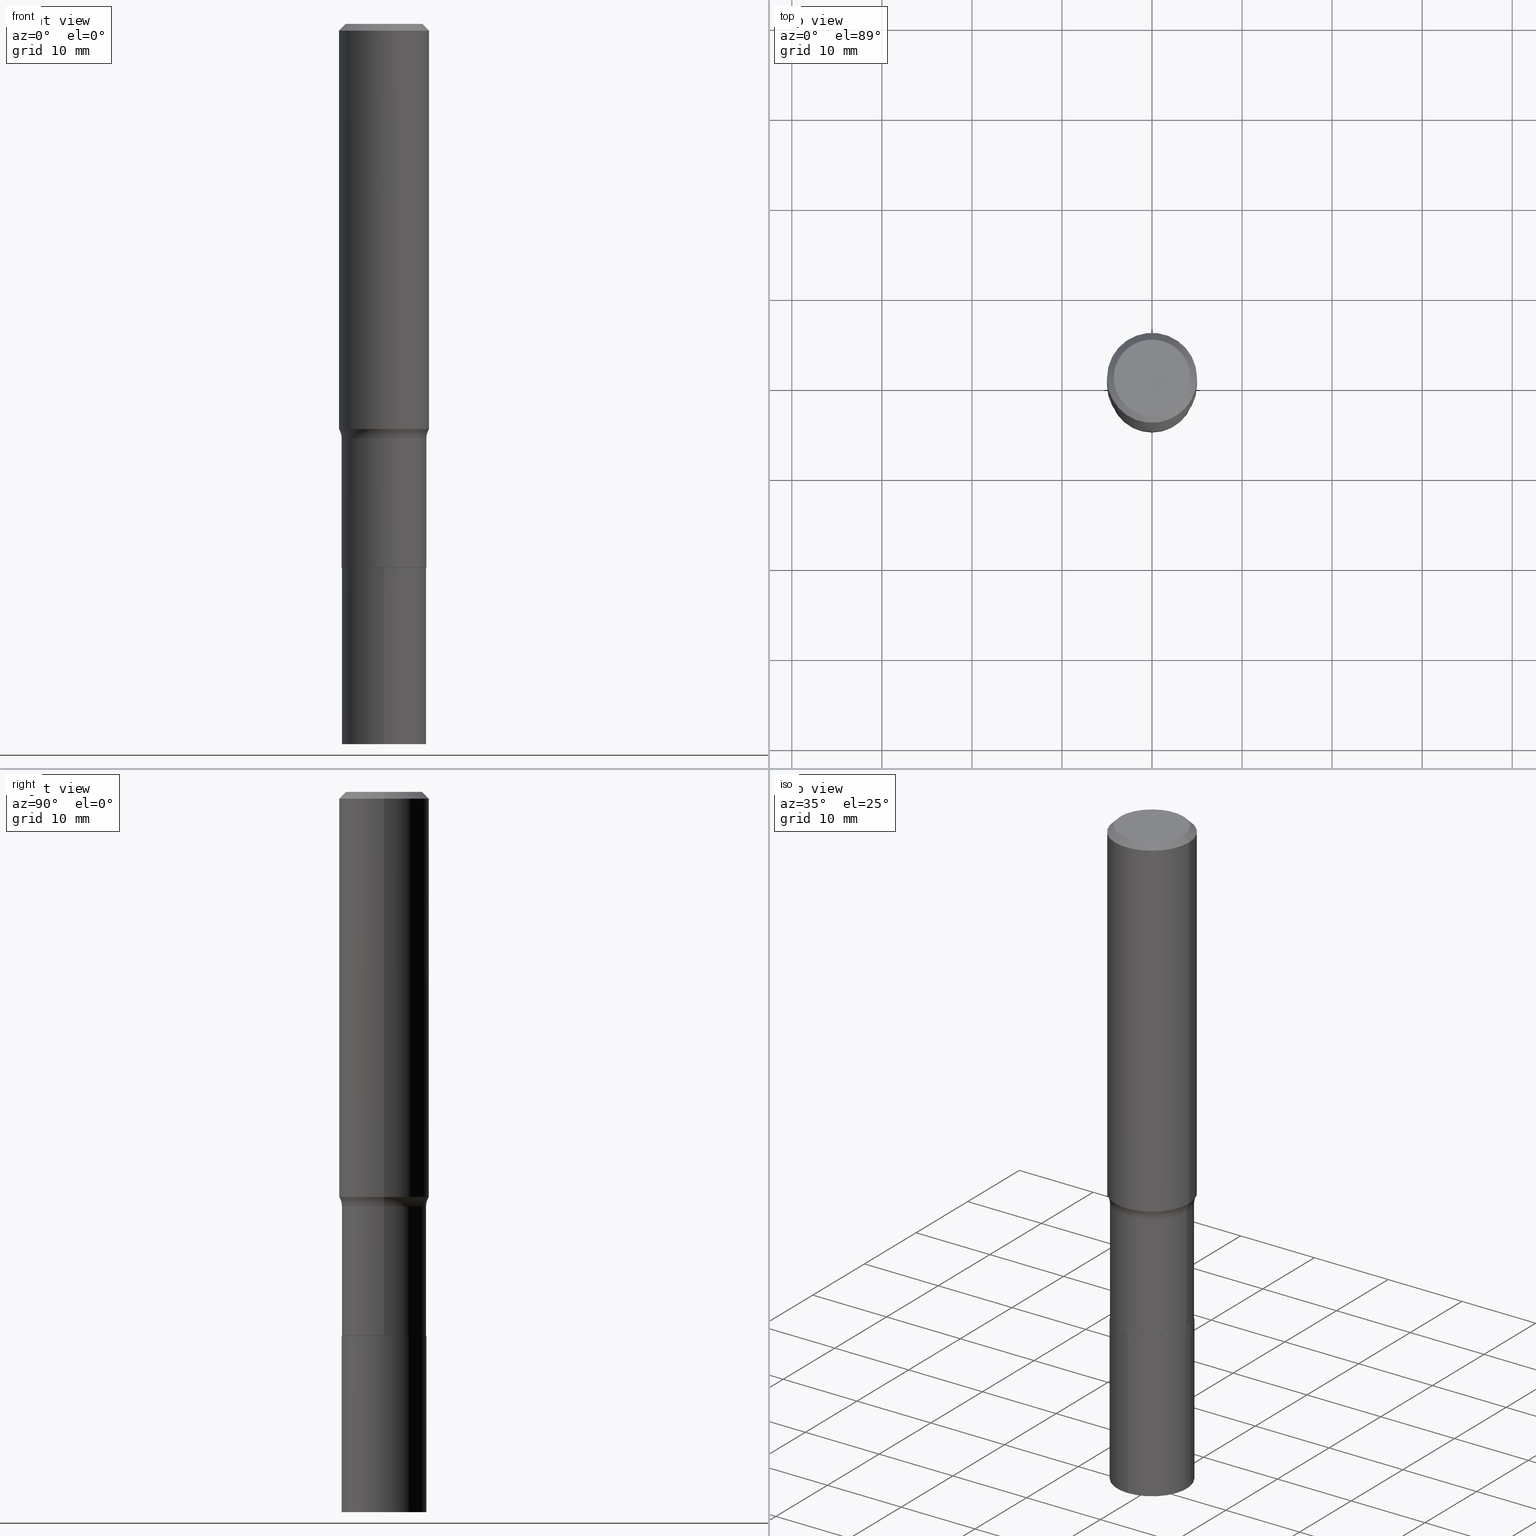
[diagram: canonical four-view strip — front | top / right | iso, engineering-drawing reading convention]
A machine part, canonical four-view strip (front | top / right | iso — engineering-drawing reading convention). The complete STEP part file that produces these views, byte-faithful:
ISO-10303-21;
HEADER;
FILE_DESCRIPTION (( 'STEP AP203' ),
    '1' );
FILE_NAME ('67141.STEP',
    '2024-04-19T16:00:24',
    ( '' ),
    ( '' ),
    'SwSTEP 2.0',
    'SolidWorks 2023',
    '' );
FILE_SCHEMA (( 'CONFIG_CONTROL_DESIGN' ));
ENDSEC;

DATA;
#1 = CARTESIAN_POINT ( 'NONE',  ( 7.702667850016740557E-29, -1.099616916613917186E-14, -3.149600000000000843 ) ) ;
#2 = DIRECTION ( 'NONE',  ( -2.445468806185136877E-29, 3.491481338843145188E-15, 1.000000000000000000 ) ) ;
#3 = ADVANCED_FACE ( 'NONE', ( #32 ), #459, .F. ) ;
#4 = PERSON_AND_ORGANIZATION ( #5, #237 ) ;
#5 = PERSON ( 'UNSPECIFIED', 'UNSPECIFIED', 'UNSPECIFIED', ('UNSPECIFIED'), ('UNSPECIFIED'), ('UNSPECIFIED') ) ;
#6 = EDGE_CURVE ( 'NONE', #347, #252, #101, .T. ) ;
#7 = LENGTH_MEASURE_WITH_UNIT ( LENGTH_MEASURE( 0.02539999999999999897 ), #291 );
#8 = AXIS2_PLACEMENT_3D ( 'NONE', #1, #463, #434 ) ;
#9 =( GEOMETRIC_REPRESENTATION_CONTEXT ( 3 ) GLOBAL_UNCERTAINTY_ASSIGNED_CONTEXT ( ( #244 ) ) GLOBAL_UNIT_ASSIGNED_CONTEXT ( ( #219, #262, #22 ) ) REPRESENTATION_CONTEXT ( 'NONE', 'WORKASPACE' ) );
#10 = DIRECTION ( 'NONE',  ( 2.445468806185136597E-29, -3.491481338843145583E-15, -1.000000000000000000 ) ) ;
#11 = VERTEX_POINT ( 'NONE', #166 ) ;
#12 = CARTESIAN_POINT ( 'NONE',  ( 5.814346633585781088E-29, -8.301346031233465092E-15, -2.377600000000000158 ) ) ;
#13 = EDGE_CURVE ( 'NONE', #252, #347, #451, .T. ) ;
#14 = ORIENTED_EDGE ( 'NONE', *, *, #19, .T. ) ;
#15 = DIRECTION ( 'NONE',  ( -2.445468806185136597E-29, 3.491481338843145583E-15, 1.000000000000000000 ) ) ;
#16 = ORIENTED_EDGE ( 'NONE', *, *, #6, .T. ) ;
#17 = DIRECTION ( 'NONE',  ( -2.438088387897960049E-29, 3.491481338843145188E-15, 1.000000000000000000 ) ) ;
#18 = ORIENTED_EDGE ( 'NONE', *, *, #117, .F. ) ;
#19 = EDGE_CURVE ( 'NONE', #11, #118, #278, .T. ) ;
#20 = VERTEX_POINT ( 'NONE', #396 ) ;
#21 = PRODUCT_RELATED_PRODUCT_CATEGORY ( 'detail', '', ( #136 ) ) ;
#22 =( NAMED_UNIT ( * ) SI_UNIT ( $, .STERADIAN. ) SOLID_ANGLE_UNIT ( ) );
#23 = DIRECTION ( 'NONE',  ( -1.000000000000000000, 7.105427357601001859E-15, 0.000000000000000000 ) ) ;
#24 = CARTESIAN_POINT ( 'NONE',  ( 4.433879492494271668E-29, -6.330404815456507888E-15, -1.813100000000000156 ) ) ;
#25 = COORDINATED_UNIVERSAL_TIME_OFFSET ( 5, 0, .BEHIND. ) ;
#26 = VECTOR ( 'NONE', #66, 39.37007874015748143 ) ;
#27 = EDGE_CURVE ( 'NONE', #140, #126, #412, .T. ) ;
#28 = CIRCLE ( 'NONE', #102, 0.08000000000000002942 ) ;
#29 = DIRECTION ( 'NONE',  ( 2.438088387897960049E-29, -3.491481338843145188E-15, -1.000000000000000000 ) ) ;
#30 = DATE_AND_TIME ( #354, #247 ) ;
#31 = EDGE_CURVE ( 'NONE', #275, #225, #168, .T. ) ;
#32 = FACE_OUTER_BOUND ( 'NONE', #50, .T. ) ;
#33 = APPROVAL_DATE_TIME ( #314, #359 ) ;
#34 = CC_DESIGN_DATE_AND_TIME_ASSIGNMENT ( #287, #328, ( #401 ) ) ;
#35 = DIRECTION ( 'NONE',  ( -2.445468806185136597E-29, 3.491481338843145583E-15, 1.000000000000000000 ) ) ;
#36 = LOCAL_TIME ( 12, 0, 24.00000000000000000, #428 ) ;
#37 = CC_DESIGN_APPROVAL ( #359, ( #112 ) ) ;
#38 = SHAPE_DEFINITION_REPRESENTATION ( #153, #149 ) ;
#39 = AXIS2_PLACEMENT_3D ( 'NONE', #42, #342, #339 ) ;
#40 = DIRECTION ( 'NONE',  ( 1.000000000000000000, -6.982962677686265922E-15, 0.000000000000000000 ) ) ;
#41 = ORIENTED_EDGE ( 'NONE', *, *, #366, .F. ) ;
#42 = CARTESIAN_POINT ( 'NONE',  ( 5.813123899182689408E-29, -8.299600290564042799E-15, -2.377100000000000435 ) ) ;
#43 = CIRCLE ( 'NONE', #436, 0.1845499999999999363 ) ;
#44 = ORIENTED_EDGE ( 'NONE', *, *, #31, .T. ) ;
#45 = CARTESIAN_POINT ( 'NONE',  ( 0.1968500000000000250, -1.453583746094017706E-15, -0.02952750000000019595 ) ) ;
#46 = ORIENTED_EDGE ( 'NONE', *, *, #159, .T. ) ;
#47 = LINE ( 'NONE', #193, #268 ) ;
#48 = CARTESIAN_POINT ( 'NONE',  ( 5.814346633585781088E-29, -8.301346031233465092E-15, -2.377600000000000158 ) ) ;
#49 = ADVANCED_FACE ( 'NONE', ( #176 ), #460, .T. ) ;
#50 = EDGE_LOOP ( 'NONE', ( #341, #16 ) ) ;
#51 = FACE_OUTER_BOUND ( 'NONE', #456, .T. ) ;
#52 = CONICAL_SURFACE ( 'NONE', #325, 0.1968500000000000250, 0.7853981633974453924 ) ;
#53 = CIRCLE ( 'NONE', #277, 0.1968500000000002470 ) ;
#54 = PERSON_AND_ORGANIZATION ( #5, #237 ) ;
#55 = ORIENTED_EDGE ( 'NONE', *, *, #19, .F. ) ;
#56 = DIRECTION ( 'NONE',  ( -2.445468806185136597E-29, 3.491481338843145583E-15, 1.000000000000000000 ) ) ;
#57 = EDGE_CURVE ( 'NONE', #123, #404, #212, .T. ) ;
#58 = CYLINDRICAL_SURFACE ( 'NONE', #143, 0.1850499999999999923 ) ;
#59 = CARTESIAN_POINT ( 'NONE',  ( 1.314859332524142253E-15, 0.1850499999999916934, -2.377600000000001046 ) ) ;
#60 = PERSON_AND_ORGANIZATION_ROLE ( 'creator' ) ;
#61 = AXIS2_PLACEMENT_3D ( 'NONE', #300, #158, #86 ) ;
#62 = AXIS2_PLACEMENT_3D ( 'NONE', #405, #222, #116 ) ;
#63 = ORIENTED_EDGE ( 'NONE', *, *, #31, .F. ) ;
#64 = DIRECTION ( 'NONE',  ( 1.000000000000000000, 0.000000000000000000, 0.000000000000000000 ) ) ;
#65 = ADVANCED_FACE ( 'NONE', ( #382 ), #271, .T. ) ;
#66 = DIRECTION ( 'NONE',  ( -2.445468806185136877E-29, 3.491481338843145188E-15, 1.000000000000000000 ) ) ;
#67 = ORIENTED_EDGE ( 'NONE', *, *, #445, .F. ) ;
#68 = DESIGN_CONTEXT ( 'detailed design', #214, 'design' ) ;
#69 = CALENDAR_DATE ( 2024, 19, 4 ) ;
#70 = DIRECTION ( 'NONE',  ( -2.446011938382070337E-29, 3.490703542623971716E-15, 1.000000000000000000 ) ) ;
#71 = AXIS2_PLACEMENT_3D ( 'NONE', #232, #265, #40 ) ;
#72 = VERTEX_POINT ( 'NONE', #415 ) ;
#73 = AXIS2_PLACEMENT_3D ( 'NONE', #165, #138, #200 ) ;
#74 = CIRCLE ( 'NONE', #311, 0.1850499999999999923 ) ;
#75 = DIRECTION ( 'NONE',  ( 1.000000000000000000, -6.982962677686265922E-15, 4.876176775795935793E-29 ) ) ;
#76 = EDGE_CURVE ( 'NONE', #72, #225, #203, .T. ) ;
#77 = ORIENTED_EDGE ( 'NONE', *, *, #356, .F. ) ;
#78 = DIRECTION ( 'NONE',  ( 1.000000000000000000, -6.982962677686270655E-15, 0.000000000000000000 ) ) ;
#79 = AXIS2_PLACEMENT_3D ( 'NONE', #206, #360, #107 ) ;
#80 = ORIENTED_EDGE ( 'NONE', *, *, #299, .T. ) ;
#81 = APPLICATION_CONTEXT ( 'configuration controlled 3d designs of mechanical parts and assemblies' ) ;
#82 = DIRECTION ( 'NONE',  ( 1.000000000000000000, -6.982962677686266711E-15, 4.883557194083112901E-29 ) ) ;
#83 = CARTESIAN_POINT ( 'NONE',  ( 4.433879492494271668E-29, -6.330404815456507888E-15, -1.813100000000000156 ) ) ;
#84 = CARTESIAN_POINT ( 'NONE',  ( 5.814346633585781088E-29, -8.301346031233465092E-15, -2.377600000000000158 ) ) ;
#85 = ORIENTED_EDGE ( 'NONE', *, *, #274, .T. ) ;
#86 = DIRECTION ( 'NONE',  ( -6.982962677686265133E-15, -1.000000000000000000, 2.952551195530141356E-15 ) ) ;
#87 = EDGE_CURVE ( 'NONE', #197, #154, #43, .T. ) ;
#88 = ORIENTED_EDGE ( 'NONE', *, *, #327, .F. ) ;
#89 = CARTESIAN_POINT ( 'NONE',  ( 0.1845499999999999363, -9.590051793400465569E-15, -2.377600000000000158 ) ) ;
#90 = ORIENTED_EDGE ( 'NONE', *, *, #186, .T. ) ;
#91 = FACE_OUTER_BOUND ( 'NONE', #413, .T. ) ;
#92 = PERSON_AND_ORGANIZATION ( #5, #237 ) ;
#93 = DIRECTION ( 'NONE',  ( -2.445468806185136597E-29, 3.491481338843145583E-15, 1.000000000000000000 ) ) ;
#94 = ORIENTED_EDGE ( 'NONE', *, *, #445, .T. ) ;
#95 = EDGE_CURVE ( 'NONE', #72, #20, #308, .T. ) ;
#96 = MANIFOLD_SOLID_BREP ( 'Body-Move/Copy2[2]', #363 ) ;
#97 = CARTESIAN_POINT ( 'NONE',  ( 5.814346633585781088E-29, -8.301346031233465092E-15, -2.377600000000000158 ) ) ;
#98 = CC_DESIGN_PERSON_AND_ORGANIZATION_ASSIGNMENT ( #92, #60, ( #112 ) ) ;
#99 = DIRECTION ( 'NONE',  ( 0.000000000000000000, 0.000000000000000000, 1.000000000000000000 ) ) ;
#100 = CYLINDRICAL_SURFACE ( 'NONE', #310, 0.1968500000000001082 ) ;
#101 = CIRCLE ( 'NONE', #108, 0.1673224999999999851 ) ;
#102 = AXIS2_PLACEMENT_3D ( 'NONE', #427, #245, #389 ) ;
#103 = EDGE_LOOP ( 'NONE', ( #431, #157 ) ) ;
#104 = CARTESIAN_POINT ( 'NONE',  ( -1.001697619218021790E-46, 1.430158722866389718E-32, 4.096137381448108366E-18 ) ) ;
#105 = SECURITY_CLASSIFICATION_LEVEL ( 'unclassified' ) ;
#106 = LINE ( 'NONE', #399, #466 ) ;
#107 = DIRECTION ( 'NONE',  ( 1.000000000000000000, -6.982962677686270655E-15, 0.000000000000000000 ) ) ;
#108 = AXIS2_PLACEMENT_3D ( 'NONE', #171, #56, #352 ) ;
#109 = TOROIDAL_SURFACE ( 'NONE', #178, 0.2650499999999999523, 0.08000000000000001554 ) ;
#110 = PERSON_AND_ORGANIZATION_ROLE ( 'design_supplier' ) ;
#111 = DATE_AND_TIME ( #439, #364 ) ;
#112 = PRODUCT_DEFINITION ( 'UNKNOWN', '', #218, #68 ) ;
#113 = AXIS2_PLACEMENT_3D ( 'NONE', #173, #29, #167 ) ;
#114 = VECTOR ( 'NONE', #119, 39.37007874015748143 ) ;
#115 = ORIENTED_EDGE ( 'NONE', *, *, #146, .T. ) ;
#116 = DIRECTION ( 'NONE',  ( 1.000000000000000000, -6.982962677686266711E-15, 4.876176775795935793E-29 ) ) ;
#117 = EDGE_CURVE ( 'NONE', #216, #275, #435, .T. ) ;
#118 = VERTEX_POINT ( 'NONE', #208 ) ;
#119 = DIRECTION ( 'NONE',  ( -2.445468806185136877E-29, 3.491481338843145188E-15, 1.000000000000000000 ) ) ;
#120 = ADVANCED_FACE ( 'NONE', ( #397 ), #134, .T. ) ;
#121 = ORIENTED_EDGE ( 'NONE', *, *, #186, .F. ) ;
#122 = PLANE ( 'NONE',  #331 ) ;
#123 = VERTEX_POINT ( 'NONE', #59 ) ;
#124 = CONICAL_SURFACE ( 'NONE', #422, 0.1845499999999999363, 0.7853981633975849475 ) ;
#125 = DIRECTION ( 'NONE',  ( -1.000000000000000000, 6.982962677686265922E-15, 0.000000000000000000 ) ) ;
#126 = VERTEX_POINT ( 'NONE', #280 ) ;
#127 = DIRECTION ( 'NONE',  ( -2.445468806185136597E-29, 3.491481338843145583E-15, 1.000000000000000000 ) ) ;
#128 = ORIENTED_EDGE ( 'NONE', *, *, #57, .T. ) ;
#129 = DIRECTION ( 'NONE',  ( -2.445468806185136597E-29, 3.491481338843145583E-15, 1.000000000000000000 ) ) ;
#130 = CLOSED_SHELL ( 'NONE', ( #248, #306, #448, #425 ) ) ;
#131 = DIRECTION ( 'NONE',  ( 1.000000000000000000, -6.982962677686265922E-15, 0.000000000000000000 ) ) ;
#132 = AXIS2_PLACEMENT_3D ( 'NONE', #185, #296, #270 ) ;
#133 = APPROVAL_STATUS ( 'not_yet_approved' ) ;
#134 = CYLINDRICAL_SURFACE ( 'NONE', #150, 0.1850499999999999368 ) ;
#135 = DIRECTION ( 'NONE',  ( -0.7071067811865454633, 2.468850131082235367E-15, -0.7071067811865495711 ) ) ;
#136 = PRODUCT ( '67141', '67141', '', ( #233 ) ) ;
#137 = APPROVAL_STATUS ( 'not_yet_approved' ) ;
#138 = DIRECTION ( 'NONE',  ( -2.445468806185136597E-29, 3.491481338843145583E-15, 1.000000000000000000 ) ) ;
#139 = LINE ( 'NONE', #174, #235 ) ;
#140 = VERTEX_POINT ( 'NONE', #242 ) ;
#141 = PERSON_AND_ORGANIZATION_ROLE ( 'creator' ) ;
#142 = AXIS2_PLACEMENT_3D ( 'NONE', #301, #386, #343 ) ;
#143 = AXIS2_PLACEMENT_3D ( 'NONE', #241, #385, #313 ) ;
#144 = EDGE_LOOP ( 'NONE', ( #163, #80, #63, #18 ) ) ;
#145 = APPROVAL_STATUS ( 'not_yet_approved' ) ;
#146 = EDGE_CURVE ( 'NONE', #11, #72, #289, .T. ) ;
#147 = ADVANCED_FACE ( 'NONE', ( #432 ), #194, .T. ) ;
#148 = DIRECTION ( 'NONE',  ( 0.7071067811865454633, -7.319954787623248157E-15, -0.7071067811865495711 ) ) ;
#149 = ADVANCED_BREP_SHAPE_REPRESENTATION ( '67141', ( #260, #96, #204 ), #9 ) ;
#150 = AXIS2_PLACEMENT_3D ( 'NONE', #156, #93, #424 ) ;
#151 = ORIENTED_EDGE ( 'NONE', *, *, #458, .F. ) ;
#152 = LINE ( 'NONE', #192, #114 ) ;
#153 = PRODUCT_DEFINITION_SHAPE ( 'NONE', 'NONE',  #112 ) ;
#154 = VERTEX_POINT ( 'NONE', #391 ) ;
#155 = PLANE ( 'NONE',  #132 ) ;
#156 = CARTESIAN_POINT ( 'NONE',  ( 0.000000000000000000, 0.000000000000000000, 0.000000000000000000 ) ) ;
#157 = ORIENTED_EDGE ( 'NONE', *, *, #320, .F. ) ;
#158 = DIRECTION ( 'NONE',  ( -2.446011938382070337E-29, 3.490703542623971716E-15, 1.000000000000000000 ) ) ;
#159 = EDGE_CURVE ( 'NONE', #126, #404, #172, .T. ) ;
#160 = AXIS2_PLACEMENT_3D ( 'NONE', #24, #35, #312 ) ;
#161 = CC_DESIGN_APPROVAL ( #253, ( #401 ) ) ;
#162 = DIRECTION ( 'NONE',  ( -2.445468806185136597E-29, 3.491481338843145583E-15, 1.000000000000000000 ) ) ;
#163 = ORIENTED_EDGE ( 'NONE', *, *, #356, .T. ) ;
#164 = CARTESIAN_POINT ( 'NONE',  ( 7.220858017463209485E-31, -1.030947152326916609E-16, -0.02952750000000019595 ) ) ;
#165 = CARTESIAN_POINT ( 'NONE',  ( 0.000000000000000000, 0.000000000000000000, 0.000000000000000000 ) ) ;
#166 = CARTESIAN_POINT ( 'NONE',  ( 0.1968500000000002470, -7.558993630916840498E-15, -1.771281822134387118 ) ) ;
#167 = DIRECTION ( 'NONE',  ( -1.000000000000000000, 6.982962677686265922E-15, -4.876176775795935793E-29 ) ) ;
#168 = CIRCLE ( 'NONE', #160, 0.1850499999999999090 ) ;
#169 = CARTESIAN_POINT ( 'NONE',  ( 5.814346633585781088E-29, -8.301346031233465092E-15, -2.377600000000000158 ) ) ;
#170 = CIRCLE ( 'NONE', #437, 0.1968500000000000250 ) ;
#171 = CARTESIAN_POINT ( 'NONE',  ( -1.001697619218021790E-46, 1.430158722866389718E-32, 4.096137381448108366E-18 ) ) ;
#172 = LINE ( 'NONE', #319, #440 ) ;
#173 = CARTESIAN_POINT ( 'NONE',  ( -5.008488096090108951E-47, 7.150793614331948590E-33, 2.048068690724054183E-18 ) ) ;
#174 = CARTESIAN_POINT ( 'NONE',  ( -0.1968500000000000250, 1.271501487869850120E-15, -0.02952750000000019595 ) ) ;
#175 = DATE_AND_TIME ( #205, #36 ) ;
#176 = FACE_OUTER_BOUND ( 'NONE', #283, .T. ) ;
#177 = ADVANCED_FACE ( 'NONE', ( #282 ), #100, .T. ) ;
#178 = AXIS2_PLACEMENT_3D ( 'NONE', #447, #267, #82 ) ;
#179 = APPROVAL_ROLE ( '' ) ;
#180 = EDGE_CURVE ( 'NONE', #154, #443, #250, .T. ) ;
#181 = COORDINATED_UNIVERSAL_TIME_OFFSET ( 5, 0, .BEHIND. ) ;
#182 = CIRCLE ( 'NONE', #71, 0.1968500000000000250 ) ;
#183 = EDGE_CURVE ( 'NONE', #126, #140, #234, .T. ) ;
#184 = DIRECTION ( 'NONE',  ( 1.000000000000000000, -6.982962677686272233E-15, 0.000000000000000000 ) ) ;
#185 = CARTESIAN_POINT ( 'NONE',  ( 1.208543491414143818E-29, -2.029612487026211132E-14, -3.149600000000000843 ) ) ;
#186 = EDGE_CURVE ( 'NONE', #197, #216, #106, .T. ) ;
#187 = ORIENTED_EDGE ( 'NONE', *, *, #292, .T. ) ;
#188 = CIRCLE ( 'NONE', #329, 0.1850499999999999090 ) ;
#189 = APPROVAL_PERSON_ORGANIZATION ( #4, #253, #179 ) ;
#190 = DIRECTION ( 'NONE',  ( -2.446011938382070337E-29, 3.490703542623971321E-15, 1.000000000000000000 ) ) ;
#191 = ORIENTED_EDGE ( 'NONE', *, *, #438, .F. ) ;
#192 = CARTESIAN_POINT ( 'NONE',  ( -0.1850499999999999368, 1.314859332524064945E-15, -9.102489384516700747E-30 ) ) ;
#193 = CARTESIAN_POINT ( 'NONE',  ( 1.314859332524123320E-15, 0.1850499999999916934, -2.377600000000001046 ) ) ;
#194 = CONICAL_SURFACE ( 'NONE', #79, 0.1845499999999999363, 0.7853981633975849475 ) ;
#195 = PLANE ( 'NONE',  #369 ) ;
#196 = COORDINATED_UNIVERSAL_TIME_OFFSET ( 5, 0, .BEHIND. ) ;
#197 = VERTEX_POINT ( 'NONE', #89 ) ;
#198 = DIRECTION ( 'NONE',  ( -2.446011938382070337E-29, 3.490703542623971716E-15, 1.000000000000000000 ) ) ;
#199 = PERSON_AND_ORGANIZATION ( #5, #237 ) ;
#200 = DIRECTION ( 'NONE',  ( 1.000000000000000000, -6.982962677686267499E-15, 4.876176775795935793E-29 ) ) ;
#201 = DIRECTION ( 'NONE',  ( 1.000000000000000000, -6.982962677686267499E-15, 4.876294436782262290E-29 ) ) ;
#202 = EDGE_LOOP ( 'NONE', ( #338, #349, #14, #191 ) ) ;
#203 = CIRCLE ( 'NONE', #400, 0.08000000000000002942 ) ;
#204 = AXIS2_PLACEMENT_3D ( 'NONE', #420, #99, #64 ) ;
#205 = CALENDAR_DATE ( 2024, 19, 4 ) ;
#206 = CARTESIAN_POINT ( 'NONE',  ( 5.814346633585781088E-29, -8.301346031233465092E-15, -2.377600000000000158 ) ) ;
#207 = ORIENTED_EDGE ( 'NONE', *, *, #27, .T. ) ;
#208 = CARTESIAN_POINT ( 'NONE',  ( 0.1968500000000000250, -1.477690918335233294E-15, -0.02952750000000019595 ) ) ;
#209 = CARTESIAN_POINT ( 'NONE',  ( 7.702667850016740557E-29, -1.099616916613917186E-14, -3.149600000000000843 ) ) ;
#210 = DIRECTION ( 'NONE',  ( -0.7071067811866441621, 7.493145998870704414E-15, 0.7071067811864508723 ) ) ;
#211 = DIRECTION ( 'NONE',  ( -1.000000000000000000, 6.982962677686265922E-15, 0.000000000000000000 ) ) ;
#212 = CIRCLE ( 'NONE', #377, 0.1850499999999999923 ) ;
#213 = LOCAL_TIME ( 12, 0, 24.00000000000000000, #25 ) ;
#214 = APPLICATION_CONTEXT ( 'configuration controlled 3d designs of mechanical parts and assemblies' ) ;
#215 = APPROVAL_DATE_TIME ( #111, #253 ) ;
#216 = VERTEX_POINT ( 'NONE', #410 ) ;
#217 = AXIS2_PLACEMENT_3D ( 'NONE', #324, #254, #211 ) ;
#218 = PRODUCT_DEFINITION_FORMATION_WITH_SPECIFIED_SOURCE ( 'ANY', '', #136, .NOT_KNOWN. ) ;
#219 =( CONVERSION_BASED_UNIT ( 'INCH', #7 ) LENGTH_UNIT ( ) NAMED_UNIT ( #387 ) );
#220 = CYLINDRICAL_SURFACE ( 'NONE', #62, 0.1968500000000001082 ) ;
#221 = ORIENTED_EDGE ( 'NONE', *, *, #320, .T. ) ;
#222 = DIRECTION ( 'NONE',  ( -2.445468806185136597E-29, 3.491481338843145583E-15, 1.000000000000000000 ) ) ;
#223 = VECTOR ( 'NONE', #2, 39.37007874015748143 ) ;
#224 = TOROIDAL_SURFACE ( 'NONE', #326, 0.2650499999999999523, 0.08000000000000001554 ) ;
#225 = VERTEX_POINT ( 'NONE', #371 ) ;
#226 = EDGE_CURVE ( 'NONE', #140, #123, #47, .T. ) ;
#227 = FACE_OUTER_BOUND ( 'NONE', #297, .T. ) ;
#228 = EDGE_LOOP ( 'NONE', ( #94, #128 ) ) ;
#229 = CYLINDRICAL_SURFACE ( 'NONE', #61, 0.1850499999999999923 ) ;
#230 = CC_DESIGN_PERSON_AND_ORGANIZATION_ASSIGNMENT ( #330, #258, ( #401 ) ) ;
#231 = DIRECTION ( 'NONE',  ( -2.445468806185136597E-29, 3.491481338843145583E-15, 1.000000000000000000 ) ) ;
#232 = CARTESIAN_POINT ( 'NONE',  ( 7.220858017463209485E-31, -1.030947152326916609E-16, -0.02952750000000019595 ) ) ;
#233 = MECHANICAL_CONTEXT ( 'NONE', #81, 'mechanical' ) ;
#234 = CIRCLE ( 'NONE', #8, 0.1850499999999999923 ) ;
#235 = VECTOR ( 'NONE', #135, 39.37007874015748143 ) ;
#236 = EDGE_LOOP ( 'NONE', ( #41, #416, #370, #353 ) ) ;
#237 = ORGANIZATION ( 'UNSPECIFIED', 'UNSPECIFIED', '' ) ;
#238 = DIRECTION ( 'NONE',  ( 1.000000000000000000, -6.982962677686270655E-15, 0.000000000000000000 ) ) ;
#239 = CC_DESIGN_PERSON_AND_ORGANIZATION_ASSIGNMENT ( #285, #110, ( #218 ) ) ;
#240 = DIRECTION ( 'NONE',  ( -2.446011938382070337E-29, 3.490703542623971716E-15, 1.000000000000000000 ) ) ;
#241 = CARTESIAN_POINT ( 'NONE',  ( 5.814346633585781088E-29, -8.301346031233465092E-15, -2.377600000000000158 ) ) ;
#242 = CARTESIAN_POINT ( 'NONE',  ( 1.314859332524132787E-15, 0.1850499999999890011, -3.149600000000001288 ) ) ;
#243 = ORIENTED_EDGE ( 'NONE', *, *, #458, .T. ) ;
#244 = UNCERTAINTY_MEASURE_WITH_UNIT (LENGTH_MEASURE( 1.000000000000000082E-05 ), #219, 'distance_accuracy_value', 'NONE');
#245 = DIRECTION ( 'NONE',  ( -6.982962677686266711E-15, -1.000000000000000000, 3.491481338843145583E-15 ) ) ;
#246 = VECTOR ( 'NONE', #210, 39.37007874015748143 ) ;
#247 = LOCAL_TIME ( 12, 0, 24.00000000000000000, #196 ) ;
#248 = ADVANCED_FACE ( 'NONE', ( #51 ), #229, .T. ) ;
#249 = DATE_TIME_ROLE ( 'creation_date' ) ;
#250 = LINE ( 'NONE', #255, #246 ) ;
#251 = CARTESIAN_POINT ( 'NONE',  ( 0.1850499999999999368, -1.292197243505843287E-15, 9.023365123610376264E-30 ) ) ;
#252 = VERTEX_POINT ( 'NONE', #334 ) ;
#253 = APPROVAL ( #145, 'UNSPECIFIED' ) ;
#254 = DIRECTION ( 'NONE',  ( 2.445468806185136597E-29, -3.491481338843145583E-15, -1.000000000000000000 ) ) ;
#255 = CARTESIAN_POINT ( 'NONE',  ( -0.1845499999999999363, -6.990039412388200257E-15, -2.377600000000000158 ) ) ;
#256 = ORIENTED_EDGE ( 'NONE', *, *, #366, .T. ) ;
#257 = AXIS2_PLACEMENT_3D ( 'NONE', #209, #70, #358 ) ;
#258 = PERSON_AND_ORGANIZATION_ROLE ( 'classification_officer' ) ;
#259 = DIRECTION ( 'NONE',  ( -2.446011938382070337E-29, 3.490703542623971321E-15, 1.000000000000000000 ) ) ;
#260 = MANIFOLD_SOLID_BREP ( 'Body-Move/Copy2[1]', #130 ) ;
#261 = CARTESIAN_POINT ( 'NONE',  ( 5.813123899182689408E-29, -8.299600290564042799E-15, -2.377100000000000435 ) ) ;
#262 =( NAMED_UNIT ( * ) PLANE_ANGLE_UNIT ( ) SI_UNIT ( $, .RADIAN. ) );
#263 = FACE_OUTER_BOUND ( 'NONE', #103, .T. ) ;
#264 = ORIENTED_EDGE ( 'NONE', *, *, #274, .F. ) ;
#265 = DIRECTION ( 'NONE',  ( -2.445468806185136597E-29, 3.491481338843145583E-15, 1.000000000000000000 ) ) ;
#266 = ORIENTED_EDGE ( 'NONE', *, *, #180, .F. ) ;
#267 = DIRECTION ( 'NONE',  ( -2.445468806185136597E-29, 3.491481338843145583E-15, 1.000000000000000000 ) ) ;
#268 = VECTOR ( 'NONE', #190, 39.37007874015748143 ) ;
#269 = LOCAL_TIME ( 12, 0, 24.00000000000000000, #181 ) ;
#270 = DIRECTION ( 'NONE',  ( -6.982962677686265922E-15, -1.000000000000000000, 3.490703542623971321E-15 ) ) ;
#271 = CYLINDRICAL_SURFACE ( 'NONE', #73, 0.1850499999999999368 ) ;
#272 = EDGE_LOOP ( 'NONE', ( #345, #406, #243, #44 ) ) ;
#273 = CARTESIAN_POINT ( 'NONE',  ( 4.331614442992413389E-29, -6.184397427814296523E-15, -1.771281822134387118 ) ) ;
#274 = EDGE_CURVE ( 'NONE', #225, #275, #188, .T. ) ;
#275 = VERTEX_POINT ( 'NONE', #417 ) ;
#276 = CC_DESIGN_PERSON_AND_ORGANIZATION_ASSIGNMENT ( #54, #357, ( #136 ) ) ;
#277 = AXIS2_PLACEMENT_3D ( 'NONE', #273, #162, #293 ) ;
#278 = LINE ( 'NONE', #398, #368 ) ;
#279 = CALENDAR_DATE ( 2024, 19, 4 ) ;
#280 = CARTESIAN_POINT ( 'NONE',  ( -1.292197243505766373E-15, -0.1850500000000109835, -3.149600000000000399 ) ) ;
#281 = APPROVAL_ROLE ( '' ) ;
#282 = FACE_OUTER_BOUND ( 'NONE', #446, .T. ) ;
#283 = EDGE_LOOP ( 'NONE', ( #426, #256, #187, #393 ) ) ;
#284 = CIRCLE ( 'NONE', #442, 0.1850499999999999923 ) ;
#285 = PERSON_AND_ORGANIZATION ( #5, #237 ) ;
#286 = ORIENTED_EDGE ( 'NONE', *, *, #226, .F. ) ;
#287 = DATE_AND_TIME ( #69, #269 ) ;
#288 = ADVANCED_FACE ( 'NONE', ( #372 ), #52, .T. ) ;
#289 = CIRCLE ( 'NONE', #142, 0.1968500000000002470 ) ;
#290 = CIRCLE ( 'NONE', #294, 0.1845499999999999363 ) ;
#291 =( LENGTH_UNIT ( ) NAMED_UNIT ( * ) SI_UNIT ( $, .METRE. ) );
#292 = EDGE_CURVE ( 'NONE', #118, #20, #182, .T. ) ;
#293 = DIRECTION ( 'NONE',  ( 1.000000000000000000, -6.982962677686269866E-15, 0.000000000000000000 ) ) ;
#294 = AXIS2_PLACEMENT_3D ( 'NONE', #346, #454, #78 ) ;
#295 = ORIENTED_EDGE ( 'NONE', *, *, #292, .F. ) ;
#296 = DIRECTION ( 'NONE',  ( -2.446011938382070337E-29, 3.490703542623971321E-15, 1.000000000000000000 ) ) ;
#297 = EDGE_LOOP ( 'NONE', ( #453, #383, #77, #121 ) ) ;
#298 = CARTESIAN_POINT ( 'NONE',  ( -1.292197243505785109E-15, -0.1850500000000082912, -2.377599999999999714 ) ) ;
#299 = EDGE_CURVE ( 'NONE', #443, #225, #152, .T. ) ;
#300 = CARTESIAN_POINT ( 'NONE',  ( 5.814346633585781088E-29, -8.301346031233465092E-15, -2.377600000000000158 ) ) ;
#301 = CARTESIAN_POINT ( 'NONE',  ( 4.331614442992413389E-29, -6.184397427814296523E-15, -1.771281822134387118 ) ) ;
#302 = CC_DESIGN_APPROVAL ( #378, ( #218 ) ) ;
#303 = ORIENTED_EDGE ( 'NONE', *, *, #468, .T. ) ;
#304 = FACE_OUTER_BOUND ( 'NONE', #202, .T. ) ;
#305 = ORIENTED_EDGE ( 'NONE', *, *, #159, .F. ) ;
#306 = ADVANCED_FACE ( 'NONE', ( #411 ), #155, .F. ) ;
#307 = DIRECTION ( 'NONE',  ( -2.445468806185136597E-29, 3.491481338843145583E-15, 1.000000000000000000 ) ) ;
#308 = LINE ( 'NONE', #344, #223 ) ;
#309 = EDGE_LOOP ( 'NONE', ( #464, #408 ) ) ;
#310 = AXIS2_PLACEMENT_3D ( 'NONE', #323, #403, #315 ) ;
#311 = AXIS2_PLACEMENT_3D ( 'NONE', #261, #333, #184 ) ;
#312 = DIRECTION ( 'NONE',  ( 1.000000000000000000, -6.982962677686270655E-15, 0.000000000000000000 ) ) ;
#313 = DIRECTION ( 'NONE',  ( -6.982962677686265133E-15, -1.000000000000000000, 2.952551195530141356E-15 ) ) ;
#314 = DATE_AND_TIME ( #279, #213 ) ;
#315 = DIRECTION ( 'NONE',  ( 1.000000000000000000, -6.982962677686266711E-15, 4.876176775795935793E-29 ) ) ;
#316 = DIRECTION ( 'NONE',  ( -6.982962677686265133E-15, -1.000000000000000000, 2.952551195530141356E-15 ) ) ;
#317 = ORIENTED_EDGE ( 'NONE', *, *, #76, .T. ) ;
#318 = APPROVAL_DATE_TIME ( #175, #378 ) ;
#319 = CARTESIAN_POINT ( 'NONE',  ( -1.292197243505785109E-15, -0.1850500000000082912, -2.377599999999999714 ) ) ;
#320 = EDGE_CURVE ( 'NONE', #154, #197, #290, .T. ) ;
#321 = FACE_OUTER_BOUND ( 'NONE', #228, .T. ) ;
#322 = PERSON_AND_ORGANIZATION ( #5, #237 ) ;
#323 = CARTESIAN_POINT ( 'NONE',  ( 0.000000000000000000, 0.000000000000000000, 0.000000000000000000 ) ) ;
#324 = CARTESIAN_POINT ( 'NONE',  ( 7.220858017463209485E-31, -1.030947152326916609E-16, -0.02952750000000019595 ) ) ;
#325 = AXIS2_PLACEMENT_3D ( 'NONE', #444, #10, #125 ) ;
#326 = AXIS2_PLACEMENT_3D ( 'NONE', #83, #127, #375 ) ;
#327 = EDGE_CURVE ( 'NONE', #72, #11, #53, .T. ) ;
#328 = DATE_TIME_ROLE ( 'classification_date' ) ;
#329 = AXIS2_PLACEMENT_3D ( 'NONE', #407, #365, #450 ) ;
#330 = PERSON_AND_ORGANIZATION ( #5, #237 ) ;
#331 = AXIS2_PLACEMENT_3D ( 'NONE', #12, #17, #75 ) ;
#332 = ADVANCED_FACE ( 'NONE', ( #304 ), #220, .T. ) ;
#333 = DIRECTION ( 'NONE',  ( -2.445468806185136597E-29, 3.491481338843145583E-15, 1.000000000000000000 ) ) ;
#334 = CARTESIAN_POINT ( 'NONE',  ( -0.1673224999999999851, 1.219954130253505263E-15, 4.096137381439757534E-18 ) ) ;
#335 = ORIENTED_EDGE ( 'NONE', *, *, #95, .T. ) ;
#336 = FACE_OUTER_BOUND ( 'NONE', #272, .T. ) ;
#337 = APPROVAL_PERSON_ORGANIZATION ( #462, #378, #281 ) ;
#338 = ORIENTED_EDGE ( 'NONE', *, *, #95, .F. ) ;
#339 = DIRECTION ( 'NONE',  ( 1.000000000000000000, -6.982962677686272233E-15, 0.000000000000000000 ) ) ;
#340 = CC_DESIGN_PERSON_AND_ORGANIZATION_ASSIGNMENT ( #322, #141, ( #218 ) ) ;
#341 = ORIENTED_EDGE ( 'NONE', *, *, #13, .T. ) ;
#342 = DIRECTION ( 'NONE',  ( -2.445468806185136597E-29, 3.491481338843145583E-15, 1.000000000000000000 ) ) ;
#343 = DIRECTION ( 'NONE',  ( 1.000000000000000000, -6.982962677686269866E-15, 0.000000000000000000 ) ) ;
#344 = CARTESIAN_POINT ( 'NONE',  ( -0.1968500000000001082, 1.398703375343757985E-15, -9.682923725166787881E-30 ) ) ;
#345 = ORIENTED_EDGE ( 'NONE', *, *, #76, .F. ) ;
#346 = CARTESIAN_POINT ( 'NONE',  ( 5.814346633585781088E-29, -8.301346031233465092E-15, -2.377600000000000158 ) ) ;
#347 = VERTEX_POINT ( 'NONE', #414 ) ;
#348 = DIRECTION ( 'NONE',  ( 6.982962677686265922E-15, 1.000000000000000000, -3.490703542623971321E-15 ) ) ;
#349 = ORIENTED_EDGE ( 'NONE', *, *, #327, .T. ) ;
#350 = DIRECTION ( 'NONE',  ( -6.982962677686265133E-15, -1.000000000000000000, 2.952551195530141356E-15 ) ) ;
#351 = CARTESIAN_POINT ( 'NONE',  ( -0.2650499999999999523, -4.447111294324363078E-15, -1.813100000000000156 ) ) ;
#352 = DIRECTION ( 'NONE',  ( 1.000000000000000000, -6.982962677686267499E-15, 4.876294436782262290E-29 ) ) ;
#353 = ORIENTED_EDGE ( 'NONE', *, *, #438, .T. ) ;
#354 = CALENDAR_DATE ( 2024, 19, 4 ) ;
#355 = CC_DESIGN_DATE_AND_TIME_ASSIGNMENT ( #30, #249, ( #112 ) ) ;
#356 = EDGE_CURVE ( 'NONE', #216, #443, #392, .T. ) ;
#357 = PERSON_AND_ORGANIZATION_ROLE ( 'design_owner' ) ;
#358 = DIRECTION ( 'NONE',  ( -6.982962677686265133E-15, -1.000000000000000000, 2.952551195530141356E-15 ) ) ;
#359 = APPROVAL ( #133, 'UNSPECIFIED' ) ;
#360 = DIRECTION ( 'NONE',  ( -2.445468806185136597E-29, 3.491481338843145583E-15, 1.000000000000000000 ) ) ;
#361 = ADVANCED_FACE ( 'NONE', ( #367 ), #224, .F. ) ;
#362 = ORIENTED_EDGE ( 'NONE', *, *, #226, .T. ) ;
#363 = CLOSED_SHELL ( 'NONE', ( #409, #49, #177, #361, #65, #120, #384, #332, #288, #3, #380, #147 ) ) ;
#364 = LOCAL_TIME ( 12, 0, 24.00000000000000000, #402 ) ;
#365 = DIRECTION ( 'NONE',  ( -2.445468806185136597E-29, 3.491481338843145583E-15, 1.000000000000000000 ) ) ;
#366 = EDGE_CURVE ( 'NONE', #347, #118, #441, .T. ) ;
#367 = FACE_OUTER_BOUND ( 'NONE', #433, .T. ) ;
#368 = VECTOR ( 'NONE', #465, 39.37007874015748143 ) ;
#369 = AXIS2_PLACEMENT_3D ( 'NONE', #97, #394, #348 ) ;
#370 = ORIENTED_EDGE ( 'NONE', *, *, #418, .T. ) ;
#371 = CARTESIAN_POINT ( 'NONE',  ( -0.1850499999999999090, -6.000143220486209610E-15, -1.813100000000000156 ) ) ;
#372 = FACE_OUTER_BOUND ( 'NONE', #236, .T. ) ;
#373 = DIRECTION ( 'NONE',  ( 1.000000000000000000, -6.982962677686270655E-15, 0.000000000000000000 ) ) ;
#374 = ORIENTED_EDGE ( 'NONE', *, *, #183, .T. ) ;
#375 = DIRECTION ( 'NONE',  ( 1.000000000000000000, -6.982962677686266711E-15, 4.883557194083112901E-29 ) ) ;
#376 = DIRECTION ( 'NONE',  ( 0.7071067811866441621, -2.468850131083269169E-15, 0.7071067811864508723 ) ) ;
#377 = AXIS2_PLACEMENT_3D ( 'NONE', #423, #240, #316 ) ;
#378 = APPROVAL ( #137, 'UNSPECIFIED' ) ;
#379 = VECTOR ( 'NONE', #148, 39.37007874015748143 ) ;
#380 = ADVANCED_FACE ( 'NONE', ( #263 ), #122, .F. ) ;
#381 = ORIENTED_EDGE ( 'NONE', *, *, #57, .F. ) ;
#382 = FACE_OUTER_BOUND ( 'NONE', #144, .T. ) ;
#383 = ORIENTED_EDGE ( 'NONE', *, *, #180, .T. ) ;
#384 = ADVANCED_FACE ( 'NONE', ( #336 ), #109, .F. ) ;
#385 = DIRECTION ( 'NONE',  ( -2.446011938382070337E-29, 3.490703542623971716E-15, 1.000000000000000000 ) ) ;
#386 = DIRECTION ( 'NONE',  ( -2.445468806185136597E-29, 3.491481338843145583E-15, 1.000000000000000000 ) ) ;
#387 = DIMENSIONAL_EXPONENTS ( 1.000000000000000000, 0.000000000000000000, 0.000000000000000000, 0.000000000000000000, 0.000000000000000000, 0.000000000000000000, 0.000000000000000000 ) ;
#388 = ORIENTED_EDGE ( 'NONE', *, *, #299, .F. ) ;
#389 = DIRECTION ( 'NONE',  ( 1.000000000000000000, -6.982962677686269077E-15, 0.000000000000000000 ) ) ;
#390 = APPLICATION_PROTOCOL_DEFINITION ( 'international standard', 'config_control_design', 1994, #81 ) ;
#391 = CARTESIAN_POINT ( 'NONE',  ( -0.1845499999999999363, -6.987390185214089056E-15, -2.377600000000000158 ) ) ;
#392 = CIRCLE ( 'NONE', #39, 0.1850499999999999923 ) ;
#393 = ORIENTED_EDGE ( 'NONE', *, *, #418, .F. ) ;
#394 = DIRECTION ( 'NONE',  ( 2.446011938382070337E-29, -3.490703542623971321E-15, -1.000000000000000000 ) ) ;
#395 = APPROVAL_ROLE ( '' ) ;
#396 = CARTESIAN_POINT ( 'NONE',  ( -0.1968500000000000250, -1.745042696179735528E-15, -0.02952750000000019595 ) ) ;
#397 = FACE_OUTER_BOUND ( 'NONE', #461, .T. ) ;
#398 = CARTESIAN_POINT ( 'NONE',  ( 0.1968500000000001082, -1.374596203102542397E-15, 9.598753983154305062E-30 ) ) ;
#399 = CARTESIAN_POINT ( 'NONE',  ( 0.1845499999999999363, -9.590051793400465569E-15, -2.377600000000000158 ) ) ;
#400 = AXIS2_PLACEMENT_3D ( 'NONE', #351, #455, #23 ) ;
#401 = SECURITY_CLASSIFICATION ( '', '', #105 ) ;
#402 = COORDINATED_UNIVERSAL_TIME_OFFSET ( 5, 0, .BEHIND. ) ;
#403 = DIRECTION ( 'NONE',  ( -2.445468806185136597E-29, 3.491481338843145583E-15, 1.000000000000000000 ) ) ;
#404 = VERTEX_POINT ( 'NONE', #298 ) ;
#405 = CARTESIAN_POINT ( 'NONE',  ( 0.000000000000000000, 0.000000000000000000, 0.000000000000000000 ) ) ;
#406 = ORIENTED_EDGE ( 'NONE', *, *, #146, .F. ) ;
#407 = CARTESIAN_POINT ( 'NONE',  ( 4.433879492494271668E-29, -6.330404815456507888E-15, -1.813100000000000156 ) ) ;
#408 = ORIENTED_EDGE ( 'NONE', *, *, #27, .F. ) ;
#409 = ADVANCED_FACE ( 'NONE', ( #227 ), #124, .T. ) ;
#410 = CARTESIAN_POINT ( 'NONE',  ( 0.1850499999999999923, -9.591797534069887861E-15, -2.377100000000000435 ) ) ;
#411 = FACE_OUTER_BOUND ( 'NONE', #309, .T. ) ;
#412 = CIRCLE ( 'NONE', #257, 0.1850499999999999923 ) ;
#413 = EDGE_LOOP ( 'NONE', ( #286, #207, #46, #381 ) ) ;
#414 = CARTESIAN_POINT ( 'NONE',  ( 0.1673224999999999851, -1.300749711163072397E-15, 4.096137381456741925E-18 ) ) ;
#415 = CARTESIAN_POINT ( 'NONE',  ( -0.1968500000000002470, -4.785694052470537158E-15, -1.771281822134387118 ) ) ;
#416 = ORIENTED_EDGE ( 'NONE', *, *, #13, .F. ) ;
#417 = CARTESIAN_POINT ( 'NONE',  ( 0.1850499999999999090, -7.622602058962351372E-15, -1.813100000000000156 ) ) ;
#418 = EDGE_CURVE ( 'NONE', #252, #20, #139, .T. ) ;
#419 = ORIENTED_EDGE ( 'NONE', *, *, #117, .T. ) ;
#420 = CARTESIAN_POINT ( 'NONE',  ( 0.000000000000000000, 0.000000000000000000, 0.000000000000000000 ) ) ;
#421 = AXIS2_PLACEMENT_3D ( 'NONE', #104, #129, #201 ) ;
#422 = AXIS2_PLACEMENT_3D ( 'NONE', #48, #15, #238 ) ;
#423 = CARTESIAN_POINT ( 'NONE',  ( 5.814346633585781088E-29, -8.301346031233465092E-15, -2.377600000000000158 ) ) ;
#424 = DIRECTION ( 'NONE',  ( 1.000000000000000000, -6.982962677686267499E-15, 4.876176775795935793E-29 ) ) ;
#425 = ADVANCED_FACE ( 'NONE', ( #321 ), #195, .F. ) ;
#426 = ORIENTED_EDGE ( 'NONE', *, *, #6, .F. ) ;
#427 = CARTESIAN_POINT ( 'NONE',  ( 0.2650499999999999523, -8.181239073177253024E-15, -1.813100000000000156 ) ) ;
#428 = COORDINATED_UNIVERSAL_TIME_OFFSET ( 5, 0, .BEHIND. ) ;
#429 = APPLICATION_PROTOCOL_DEFINITION ( 'international standard', 'config_control_design', 1994, #214 ) ;
#430 = CC_DESIGN_SECURITY_CLASSIFICATION ( #401, ( #218 ) ) ;
#431 = ORIENTED_EDGE ( 'NONE', *, *, #87, .F. ) ;
#432 = FACE_OUTER_BOUND ( 'NONE', #449, .T. ) ;
#433 = EDGE_LOOP ( 'NONE', ( #88, #317, #85, #151 ) ) ;
#434 = DIRECTION ( 'NONE',  ( -6.982962677686265133E-15, -1.000000000000000000, 2.952551195530141356E-15 ) ) ;
#435 = LINE ( 'NONE', #251, #26 ) ;
#436 = AXIS2_PLACEMENT_3D ( 'NONE', #84, #231, #373 ) ;
#437 = AXIS2_PLACEMENT_3D ( 'NONE', #164, #307, #131 ) ;
#438 = EDGE_CURVE ( 'NONE', #20, #118, #170, .T. ) ;
#439 = CALENDAR_DATE ( 2024, 19, 4 ) ;
#440 = VECTOR ( 'NONE', #259, 39.37007874015748143 ) ;
#441 = LINE ( 'NONE', #45, #379 ) ;
#442 = AXIS2_PLACEMENT_3D ( 'NONE', #169, #198, #350 ) ;
#443 = VERTEX_POINT ( 'NONE', #457 ) ;
#444 = CARTESIAN_POINT ( 'NONE',  ( 7.220858017463209485E-31, -1.030947152326916609E-16, -0.02952750000000019595 ) ) ;
#445 = EDGE_CURVE ( 'NONE', #404, #123, #284, .T. ) ;
#446 = EDGE_LOOP ( 'NONE', ( #115, #335, #295, #55 ) ) ;
#447 = CARTESIAN_POINT ( 'NONE',  ( 4.433879492494271668E-29, -6.330404815456507888E-15, -1.813100000000000156 ) ) ;
#448 = ADVANCED_FACE ( 'NONE', ( #91 ), #58, .T. ) ;
#449 = EDGE_LOOP ( 'NONE', ( #266, #221, #90, #467 ) ) ;
#450 = DIRECTION ( 'NONE',  ( 1.000000000000000000, -6.982962677686270655E-15, 0.000000000000000000 ) ) ;
#451 = CIRCLE ( 'NONE', #421, 0.1673224999999999851 ) ;
#452 = APPROVAL_PERSON_ORGANIZATION ( #199, #359, #395 ) ;
#453 = ORIENTED_EDGE ( 'NONE', *, *, #87, .T. ) ;
#454 = DIRECTION ( 'NONE',  ( -2.445468806185136597E-29, 3.491481338843145583E-15, 1.000000000000000000 ) ) ;
#455 = DIRECTION ( 'NONE',  ( 7.105427357601001859E-15, 1.000000000000000000, -3.491481338843145583E-15 ) ) ;
#456 = EDGE_LOOP ( 'NONE', ( #374, #362, #67, #305 ) ) ;
#457 = CARTESIAN_POINT ( 'NONE',  ( -0.1850499999999999923, -6.000143220486209610E-15, -2.377100000000000435 ) ) ;
#458 = EDGE_CURVE ( 'NONE', #11, #275, #28, .T. ) ;
#459 = PLANE ( 'NONE',  #113 ) ;
#460 = CONICAL_SURFACE ( 'NONE', #217, 0.1968500000000000250, 0.7853981633974453924 ) ;
#461 = EDGE_LOOP ( 'NONE', ( #388, #303, #419, #264 ) ) ;
#462 = PERSON_AND_ORGANIZATION ( #5, #237 ) ;
#463 = DIRECTION ( 'NONE',  ( -2.446011938382070337E-29, 3.490703542623971716E-15, 1.000000000000000000 ) ) ;
#464 = ORIENTED_EDGE ( 'NONE', *, *, #183, .F. ) ;
#465 = DIRECTION ( 'NONE',  ( -2.445468806185136877E-29, 3.491481338843145188E-15, 1.000000000000000000 ) ) ;
#466 = VECTOR ( 'NONE', #376, 39.37007874015748143 ) ;
#467 = ORIENTED_EDGE ( 'NONE', *, *, #468, .F. ) ;
#468 = EDGE_CURVE ( 'NONE', #443, #216, #74, .T. ) ;
ENDSEC;
END-ISO-10303-21;
